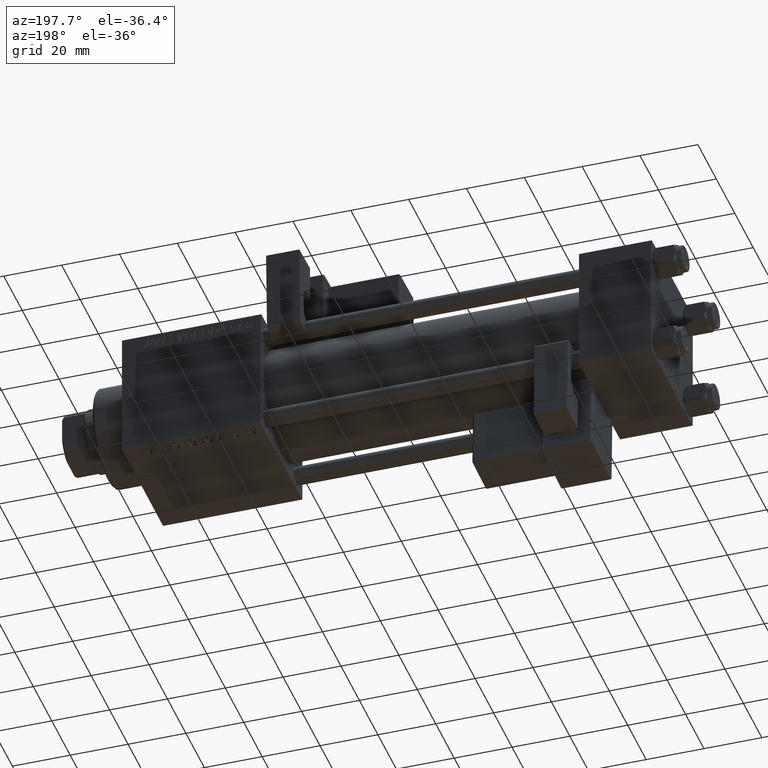
[diagram: clean part render]
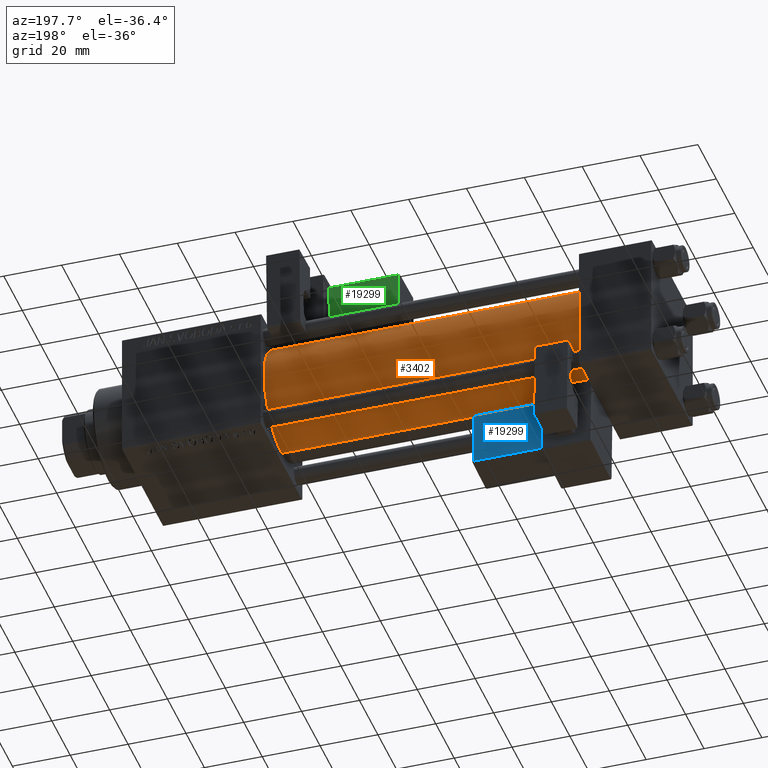
[diagram: same view with three faces highlighted in distinct colors, each labeled with its STEP entity id]
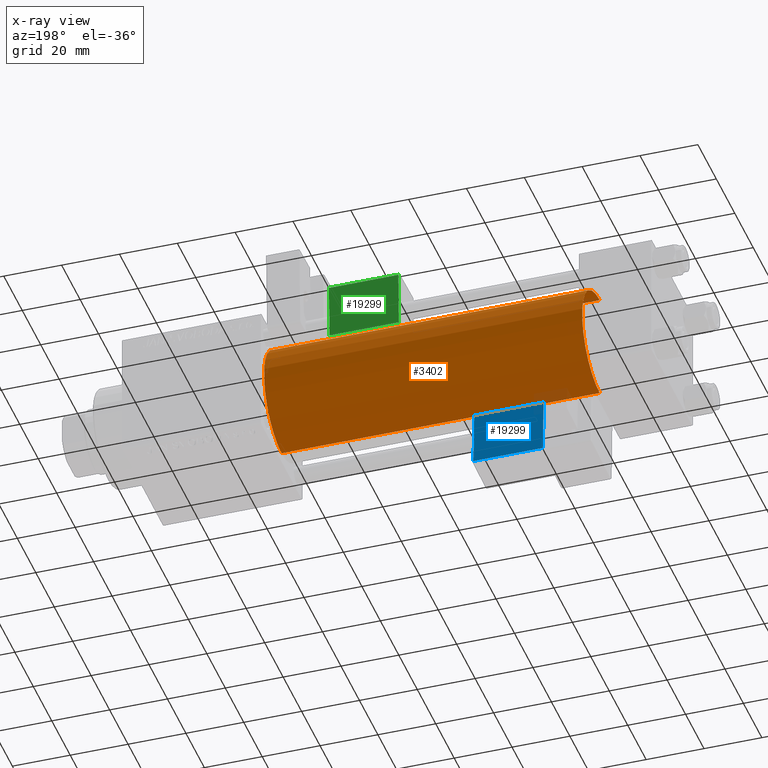
[diagram: x-ray of the same camera — body ghosted, the three highlighted faces saturated]
A machine part, auxiliary view with three faces highlighted in distinct colors.
The next image is the same camera in x-ray (body ghosted, the three faces saturated) — at least one of them is partly hidden behind the body in this view.
Their STEP definitions:

[orange] entity #3402 — the highlighted cylindrical surface (partial cylindrical patch) has radius 19 mm, axis along (-1, -0, -0).
#814 = DIRECTION ( 'NONE',  ( -1.000000000000000000, -0.000000000000000000, -0.000000000000000000 ) ) ;
#1759 = DIRECTION ( 'NONE',  ( 0.000000000000000000, 0.000000000000000000, 1.000000000000000000 ) ) ;
#2165 = VERTEX_POINT ( 'NONE', #7293 ) ;
#3402 = ADVANCED_FACE ( 'NONE', ( #27367 ), #31452, .T. ) ;
#4139 = AXIS2_PLACEMENT_3D ( 'NONE', #14880, #17879, #6427 ) ;
#4577 = CARTESIAN_POINT ( 'NONE',  ( 24.99999999999999289, -2.602085213965210642E-15, 19.00000000000000000 ) ) ;
#6427 = DIRECTION ( 'NONE',  ( 0.000000000000000000, 0.000000000000000000, 1.000000000000000000 ) ) ;
#7293 = CARTESIAN_POINT ( 'NONE',  ( 135.0000000000000000, -2.752562955852396712E-16, -19.00000000000000000 ) ) ;
#10213 = DIRECTION ( 'NONE',  ( 1.000000000000000000, -0.000000000000000000, 0.000000000000000000 ) ) ;
#11034 = AXIS2_PLACEMENT_3D ( 'NONE', #16261, #12713, #36392 ) ;
#12713 = DIRECTION ( 'NONE',  ( 1.000000000000000000, 0.000000000000000000, 0.000000000000000000 ) ) ;
#12855 = CIRCLE ( 'NONE', #52886, 19.00000000000000000 ) ;
#13805 = VERTEX_POINT ( 'NONE', #50577 ) ;
#14880 = CARTESIAN_POINT ( 'NONE',  ( 135.0000000000000000, -2.602085213965210642E-15, 0.000000000000000000 ) ) ;
#16261 = CARTESIAN_POINT ( 'NONE',  ( 135.0000000000000000, -2.602085213965210642E-15, 0.000000000000000000 ) ) ;
#16301 = DIRECTION ( 'NONE',  ( -1.000000000000000000, -0.000000000000000000, -0.000000000000000000 ) ) ;
#17879 = DIRECTION ( 'NONE',  ( -1.000000000000000000, -0.000000000000000000, -0.000000000000000000 ) ) ;
#19772 = ORIENTED_EDGE ( 'NONE', *, *, #25843, .F. ) ;
#20579 = EDGE_LOOP ( 'NONE', ( #19772, #26466, #41593, #43723 ) ) ;
#25843 = EDGE_CURVE ( 'NONE', #2165, #13805, #34457, .T. ) ;
#25935 = VECTOR ( 'NONE', #814, 1000.000000000000000 ) ;
#26466 = ORIENTED_EDGE ( 'NONE', *, *, #29944, .T. ) ;
#27367 = FACE_OUTER_BOUND ( 'NONE', #20579, .T. ) ;
#29944 = EDGE_CURVE ( 'NONE', #2165, #34079, #41311, .T. ) ;
#31452 = CYLINDRICAL_SURFACE ( 'NONE', #4139, 19.00000000000000000 ) ;
#34079 = VERTEX_POINT ( 'NONE', #34098 ) ;
#34098 = CARTESIAN_POINT ( 'NONE',  ( 24.99999999999999289, -2.752562955852396712E-16, -19.00000000000000000 ) ) ;
#34457 = CIRCLE ( 'NONE', #11034, 19.00000000000000000 ) ;
#36392 = DIRECTION ( 'NONE',  ( 0.000000000000000000, 0.000000000000000000, -1.000000000000000000 ) ) ;
#36698 = CARTESIAN_POINT ( 'NONE',  ( 135.0000000000000000, -2.752562955852396712E-16, -19.00000000000000000 ) ) ;
#38886 = LINE ( 'NONE', #50824, #25935 ) ;
#41311 = LINE ( 'NONE', #36698, #45895 ) ;
#41593 = ORIENTED_EDGE ( 'NONE', *, *, #51417, .T. ) ;
#41645 = VERTEX_POINT ( 'NONE', #4577 ) ;
#43723 = ORIENTED_EDGE ( 'NONE', *, *, #49929, .F. ) ;
#45895 = VECTOR ( 'NONE', #16301, 1000.000000000000000 ) ;
#47440 = CARTESIAN_POINT ( 'NONE',  ( 24.99999999999999289, -2.602085213965210642E-15, 0.000000000000000000 ) ) ;
#49929 = EDGE_CURVE ( 'NONE', #13805, #41645, #38886, .T. ) ;
#50577 = CARTESIAN_POINT ( 'NONE',  ( 135.0000000000000000, -2.602085213965210642E-15, 19.00000000000000000 ) ) ;
#50824 = CARTESIAN_POINT ( 'NONE',  ( 135.0000000000000000, -2.602085213965210642E-15, 19.00000000000000000 ) ) ;
#51417 = EDGE_CURVE ( 'NONE', #34079, #41645, #12855, .T. ) ;
#52886 = AXIS2_PLACEMENT_3D ( 'NONE', #47440, #10213, #1759 ) ;

[blue] entity #19299 — the highlighted planar face has unit normal (0, -0.9994, -0.0353).
#108 = ORIENTED_EDGE ( 'NONE', *, *, #37172, .T. ) ;
#1098 = CARTESIAN_POINT ( 'NONE',  ( 9.250000000000001776, -15.25000000000000000, 22.00000000000000355 ) ) ;
#3975 = VERTEX_POINT ( 'NONE', #48229 ) ;
#4797 = LINE ( 'NONE', #21394, #29990 ) ;
#5184 = LINE ( 'NONE', #1098, #17756 ) ;
#7114 = CARTESIAN_POINT ( 'NONE',  ( 33.75000000000000000, -15.25000000000000000, 2.500000000000009326 ) ) ;
#7314 = VERTEX_POINT ( 'NONE', #36761 ) ;
#10655 = DIRECTION ( 'NONE',  ( 1.734723475976807341E-16, -0.000000000000000000, -1.000000000000000000 ) ) ;
#10843 = FACE_OUTER_BOUND ( 'NONE', #48485, .T. ) ;
#15667 = ORIENTED_EDGE ( 'NONE', *, *, #20457, .T. ) ;
#15739 = EDGE_CURVE ( 'NONE', #42021, #3975, #35111, .T. ) ;
#17110 = VECTOR ( 'NONE', #43833, 1000.000000000000000 ) ;
#17701 = DIRECTION ( 'NONE',  ( -1.334402673828313339E-16, 0.000000000000000000, 1.000000000000000000 ) ) ;
#17756 = VECTOR ( 'NONE', #17701, 1000.000000000000000 ) ;
#19299 = ADVANCED_FACE ( 'NONE', ( #10843 ), #27411, .F. ) ;
#20457 = EDGE_CURVE ( 'NONE', #47333, #42021, #4797, .T. ) ;
#21394 = CARTESIAN_POINT ( 'NONE',  ( 33.75000000000000000, -15.25000000000000000, 21.50000000000000355 ) ) ;
#23520 = EDGE_CURVE ( 'NONE', #3975, #7314, #48160, .T. ) ;
#23756 = VECTOR ( 'NONE', #10655, 1000.000000000000000 ) ;
#24047 = CARTESIAN_POINT ( 'NONE',  ( 9.250000000000001776, -15.25000000000000000, 21.50000000000000000 ) ) ;
#27411 = PLANE ( 'NONE',  #31706 ) ;
#27685 = CARTESIAN_POINT ( 'NONE',  ( 33.75000000000000000, -15.25000000000000000, 22.00000000000000711 ) ) ;
#28102 = CARTESIAN_POINT ( 'NONE',  ( 33.25000000000000000, -15.25000000000000000, 21.50000000000000355 ) ) ;
#29990 = VECTOR ( 'NONE', #37986, 1000.000000000000000 ) ;
#31309 = CARTESIAN_POINT ( 'NONE',  ( 33.25000000000000000, -15.25000000000000000, 2.000000000000008438 ) ) ;
#31706 = AXIS2_PLACEMENT_3D ( 'NONE', #27685, #43200, #44271 ) ;
#35111 = LINE ( 'NONE', #31309, #23756 ) ;
#36761 = CARTESIAN_POINT ( 'NONE',  ( 9.250000000000003553, -15.25000000000000000, 2.500000000000005773 ) ) ;
#37172 = EDGE_CURVE ( 'NONE', #7314, #47333, #5184, .T. ) ;
#37986 = DIRECTION ( 'NONE',  ( 1.000000000000000000, -0.000000000000000000, 1.334402673828313339E-16 ) ) ;
#38965 = ORIENTED_EDGE ( 'NONE', *, *, #15739, .T. ) ;
#42021 = VERTEX_POINT ( 'NONE', #28102 ) ;
#43200 = DIRECTION ( 'NONE',  ( 0.000000000000000000, -1.000000000000000000, 0.000000000000000000 ) ) ;
#43833 = DIRECTION ( 'NONE',  ( -1.000000000000000000, 0.000000000000000000, -1.334402673828313339E-16 ) ) ;
#44271 = DIRECTION ( 'NONE',  ( 0.000000000000000000, -0.000000000000000000, -1.000000000000000000 ) ) ;
#47333 = VERTEX_POINT ( 'NONE', #24047 ) ;
#48160 = LINE ( 'NONE', #7114, #17110 ) ;
#48229 = CARTESIAN_POINT ( 'NONE',  ( 33.25000000000000000, -15.25000000000000000, 2.500000000000009326 ) ) ;
#48485 = EDGE_LOOP ( 'NONE', ( #48895, #108, #15667, #38965 ) ) ;
#48895 = ORIENTED_EDGE ( 'NONE', *, *, #23520, .T. ) ;

[green] entity #19299 — the highlighted planar face has unit normal (-0, -0.9994, 0.0353).
#108 = ORIENTED_EDGE ( 'NONE', *, *, #37172, .T. ) ;
#1098 = CARTESIAN_POINT ( 'NONE',  ( 9.250000000000001776, -15.25000000000000000, 22.00000000000000355 ) ) ;
#3975 = VERTEX_POINT ( 'NONE', #48229 ) ;
#4797 = LINE ( 'NONE', #21394, #29990 ) ;
#5184 = LINE ( 'NONE', #1098, #17756 ) ;
#7114 = CARTESIAN_POINT ( 'NONE',  ( 33.75000000000000000, -15.25000000000000000, 2.500000000000009326 ) ) ;
#7314 = VERTEX_POINT ( 'NONE', #36761 ) ;
#10655 = DIRECTION ( 'NONE',  ( 1.734723475976807341E-16, -0.000000000000000000, -1.000000000000000000 ) ) ;
#10843 = FACE_OUTER_BOUND ( 'NONE', #48485, .T. ) ;
#15667 = ORIENTED_EDGE ( 'NONE', *, *, #20457, .T. ) ;
#15739 = EDGE_CURVE ( 'NONE', #42021, #3975, #35111, .T. ) ;
#17110 = VECTOR ( 'NONE', #43833, 1000.000000000000000 ) ;
#17701 = DIRECTION ( 'NONE',  ( -1.334402673828313339E-16, 0.000000000000000000, 1.000000000000000000 ) ) ;
#17756 = VECTOR ( 'NONE', #17701, 1000.000000000000000 ) ;
#19299 = ADVANCED_FACE ( 'NONE', ( #10843 ), #27411, .F. ) ;
#20457 = EDGE_CURVE ( 'NONE', #47333, #42021, #4797, .T. ) ;
#21394 = CARTESIAN_POINT ( 'NONE',  ( 33.75000000000000000, -15.25000000000000000, 21.50000000000000355 ) ) ;
#23520 = EDGE_CURVE ( 'NONE', #3975, #7314, #48160, .T. ) ;
#23756 = VECTOR ( 'NONE', #10655, 1000.000000000000000 ) ;
#24047 = CARTESIAN_POINT ( 'NONE',  ( 9.250000000000001776, -15.25000000000000000, 21.50000000000000000 ) ) ;
#27411 = PLANE ( 'NONE',  #31706 ) ;
#27685 = CARTESIAN_POINT ( 'NONE',  ( 33.75000000000000000, -15.25000000000000000, 22.00000000000000711 ) ) ;
#28102 = CARTESIAN_POINT ( 'NONE',  ( 33.25000000000000000, -15.25000000000000000, 21.50000000000000355 ) ) ;
#29990 = VECTOR ( 'NONE', #37986, 1000.000000000000000 ) ;
#31309 = CARTESIAN_POINT ( 'NONE',  ( 33.25000000000000000, -15.25000000000000000, 2.000000000000008438 ) ) ;
#31706 = AXIS2_PLACEMENT_3D ( 'NONE', #27685, #43200, #44271 ) ;
#35111 = LINE ( 'NONE', #31309, #23756 ) ;
#36761 = CARTESIAN_POINT ( 'NONE',  ( 9.250000000000003553, -15.25000000000000000, 2.500000000000005773 ) ) ;
#37172 = EDGE_CURVE ( 'NONE', #7314, #47333, #5184, .T. ) ;
#37986 = DIRECTION ( 'NONE',  ( 1.000000000000000000, -0.000000000000000000, 1.334402673828313339E-16 ) ) ;
#38965 = ORIENTED_EDGE ( 'NONE', *, *, #15739, .T. ) ;
#42021 = VERTEX_POINT ( 'NONE', #28102 ) ;
#43200 = DIRECTION ( 'NONE',  ( 0.000000000000000000, -1.000000000000000000, 0.000000000000000000 ) ) ;
#43833 = DIRECTION ( 'NONE',  ( -1.000000000000000000, 0.000000000000000000, -1.334402673828313339E-16 ) ) ;
#44271 = DIRECTION ( 'NONE',  ( 0.000000000000000000, -0.000000000000000000, -1.000000000000000000 ) ) ;
#47333 = VERTEX_POINT ( 'NONE', #24047 ) ;
#48160 = LINE ( 'NONE', #7114, #17110 ) ;
#48229 = CARTESIAN_POINT ( 'NONE',  ( 33.25000000000000000, -15.25000000000000000, 2.500000000000009326 ) ) ;
#48485 = EDGE_LOOP ( 'NONE', ( #48895, #108, #15667, #38965 ) ) ;
#48895 = ORIENTED_EDGE ( 'NONE', *, *, #23520, .T. ) ;